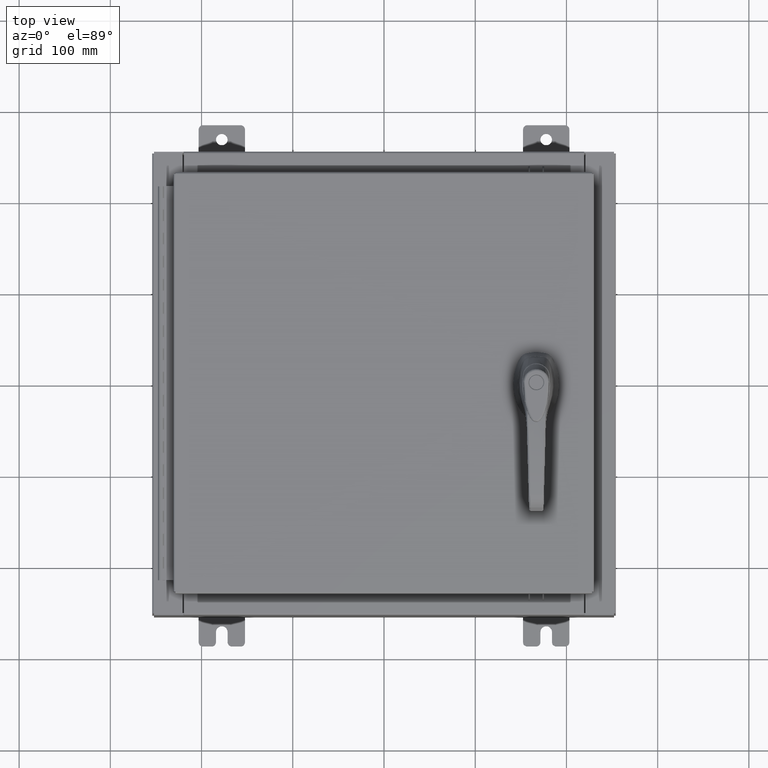
[diagram: clean part render]
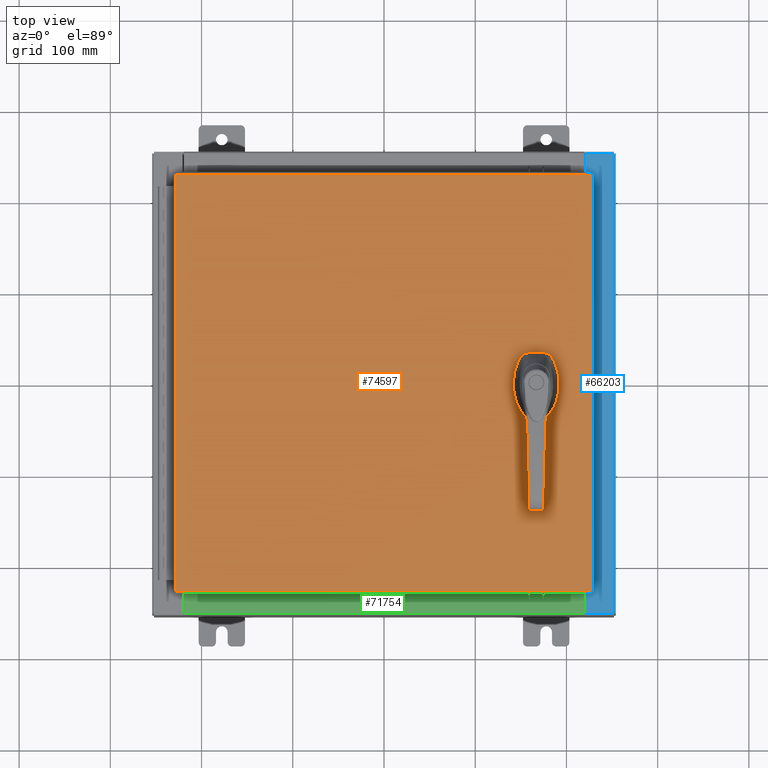
[diagram: same view with three faces highlighted in distinct colors, each labeled with its STEP entity id]
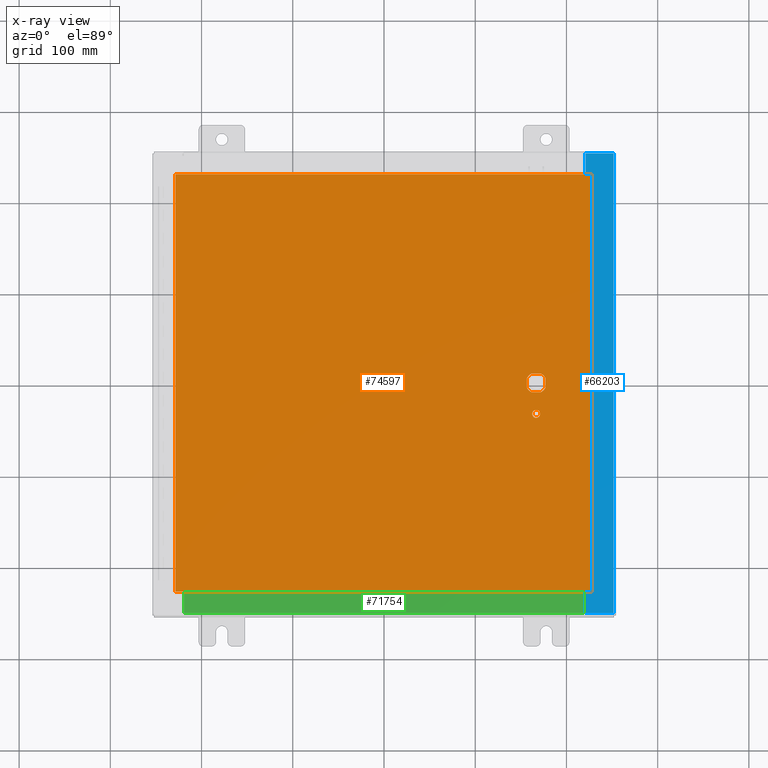
[diagram: x-ray of the same camera — body ghosted, the three highlighted faces saturated]
A machine part, top view with three faces highlighted in distinct colors.
The next image is the same camera in x-ray (body ghosted, the three faces saturated) — at least one of them is partly hidden behind the body in this view.
Their STEP definitions:

[orange] entity #74597 — the highlighted planar face has unit normal (0, 0, -1).
#316 = CARTESIAN_POINT ( 'NONE',  ( 8.990300000000001300, 9.006299999999999500, -2.219626494852214000E-016 ) ) ;
#2680 = DIRECTION ( 'NONE',  ( -0.0000000000000000000, 0.0000000000000000000, 1.000000000000000000 ) ) ;
#4566 = CIRCLE ( 'NONE', #65380, 0.4499999999999156900 ) ;
#5083 = VERTEX_POINT ( 'NONE', #9332 ) ;
#5986 = DIRECTION ( 'NONE',  ( -1.000000000000000000, 0.0000000000000000000, 0.0000000000000000000 ) ) ;
#6340 = EDGE_CURVE ( 'NONE', #22788, #26916, #59470, .T. ) ;
#6543 = CIRCLE ( 'NONE', #82032, 0.4499999999999156900 ) ;
#6753 = VECTOR ( 'NONE', #72059, 39.37007874015748100 ) ;
#7192 = LINE ( 'NONE', #89528, #32267 ) ;
#7480 = EDGE_CURVE ( 'NONE', #26916, #93489, #6543, .T. ) ;
#7741 = CARTESIAN_POINT ( 'NONE',  ( 6.577999999999999400, 0.0000000000000000000, 0.0000000000000000000 ) ) ;
#9332 = CARTESIAN_POINT ( 'NONE',  ( 6.980999999999925300, 0.2002273707563080300, 0.0000000000000000000 ) ) ;
#9451 = VERTEX_POINT ( 'NONE', #42856 ) ;
#10409 = EDGE_CURVE ( 'NONE', #100855, #11882, #76203, .T. ) ;
#10738 = CARTESIAN_POINT ( 'NONE',  ( 6.778227370756309400, 0.4029999999999252000, 0.0000000000000000000 ) ) ;
#11450 = FACE_BOUND ( 'NONE', #90456, .T. ) ;
#11882 = VERTEX_POINT ( 'NONE', #33999 ) ;
#12046 = VECTOR ( 'NONE', #69014, 39.37007874015748100 ) ;
#12727 = CARTESIAN_POINT ( 'NONE',  ( -8.990299999999997700, 9.006299999999999500, -2.048885995248197400E-016 ) ) ;
#13619 = EDGE_CURVE ( 'NONE', #11882, #50546, #7192, .T. ) ;
#13652 = ORIENTED_EDGE ( 'NONE', *, *, #93319, .T. ) ;
#13683 = EDGE_CURVE ( 'NONE', #50546, #9451, #4566, .T. ) ;
#15960 = CARTESIAN_POINT ( 'NONE',  ( 6.749500000000001200, -1.338000000000000100, 0.0000000000000000000 ) ) ;
#16116 = LINE ( 'NONE', #103578, #58344 ) ;
#16138 = CARTESIAN_POINT ( 'NONE',  ( 6.778227370756309400, -0.4029999999999252000, 0.0000000000000000000 ) ) ;
#16246 = DIRECTION ( 'NONE',  ( 1.000000000000000000, 0.0000000000000000000, 0.0000000000000000000 ) ) ;
#16728 = VECTOR ( 'NONE', #89423, 39.37007874015748100 ) ;
#18849 = CARTESIAN_POINT ( 'NONE',  ( 8.990300000000001300, 9.006299999999999500, -2.219626494852214000E-016 ) ) ;
#19392 = LINE ( 'NONE', #47368, #16728 ) ;
#21316 = CIRCLE ( 'NONE', #29931, 0.4499999999999156900 ) ;
#22079 = AXIS2_PLACEMENT_3D ( 'NONE', #45207, #104199, #53672 ) ;
#22788 = VERTEX_POINT ( 'NONE', #10738 ) ;
#23785 = DIRECTION ( 'NONE',  ( 0.0000000000000000000, 0.0000000000000000000, -1.000000000000000000 ) ) ;
#25073 = AXIS2_PLACEMENT_3D ( 'NONE', #43991, #102979, #52441 ) ;
#25768 = CARTESIAN_POINT ( 'NONE',  ( -8.990299999999999500, -9.006299999999999500, -2.219626494852214000E-016 ) ) ;
#26916 = VERTEX_POINT ( 'NONE', #109431 ) ;
#27119 = EDGE_LOOP ( 'NONE', ( #70158, #81866 ) ) ;
#27906 = EDGE_CURVE ( 'NONE', #91453, #79229, #79387, .T. ) ;
#29931 = AXIS2_PLACEMENT_3D ( 'NONE', #39488, #98501, #47965 ) ;
#31212 = FACE_OUTER_BOUND ( 'NONE', #91885, .T. ) ;
#32029 = CARTESIAN_POINT ( 'NONE',  ( 8.990299999999999500, -9.006299999999999500, -7.683322482180740400E-016 ) ) ;
#32267 = VECTOR ( 'NONE', #55941, 39.37007874015748100 ) ;
#32440 = EDGE_CURVE ( 'NONE', #79229, #78548, #106548, .T. ) ;
#32658 = AXIS2_PLACEMENT_3D ( 'NONE', #74267, #23785, #82770 ) ;
#33363 = EDGE_CURVE ( 'NONE', #93489, #100855, #19392, .T. ) ;
#33999 = CARTESIAN_POINT ( 'NONE',  ( 6.377772629243690300, -0.4029999999999252000, 0.0000000000000000000 ) ) ;
#36705 = ORIENTED_EDGE ( 'NONE', *, *, #13619, .F. ) ;
#36761 = ORIENTED_EDGE ( 'NONE', *, *, #32440, .T. ) ;
#37025 = VECTOR ( 'NONE', #5986, 39.37007874015748100 ) ;
#39488 = CARTESIAN_POINT ( 'NONE',  ( 6.577999999999999400, 0.0000000000000000000, 0.0000000000000000000 ) ) ;
#40243 = VERTEX_POINT ( 'NONE', #18849 ) ;
#41945 = DIRECTION ( 'NONE',  ( -0.0000000000000000000, 0.0000000000000000000, 1.000000000000000000 ) ) ;
#42856 = CARTESIAN_POINT ( 'NONE',  ( 6.980999999999926200, -0.2002273707563079800, 0.0000000000000000000 ) ) ;
#43991 = CARTESIAN_POINT ( 'NONE',  ( 6.577999999999999400, -1.338000000000000100, 0.0000000000000000000 ) ) ;
#45207 = CARTESIAN_POINT ( 'NONE',  ( 6.577999999999999400, 0.0000000000000000000, 0.0000000000000000000 ) ) ;
#47368 = CARTESIAN_POINT ( 'NONE',  ( 6.175000000000073500, 0.0000000000000000000, 0.0000000000000000000 ) ) ;
#47695 = ORIENTED_EDGE ( 'NONE', *, *, #92130, .F. ) ;
#47965 = DIRECTION ( 'NONE',  ( 1.000000000000000000, 0.0000000000000000000, 0.0000000000000000000 ) ) ;
#50546 = VERTEX_POINT ( 'NONE', #16138 ) ;
#52441 = DIRECTION ( 'NONE',  ( 1.000000000000000000, 0.0000000000000000000, 0.0000000000000000000 ) ) ;
#53056 = DIRECTION ( 'NONE',  ( 0.0000000000000000000, 1.000000000000000000, 0.0000000000000000000 ) ) ;
#53213 = CARTESIAN_POINT ( 'NONE',  ( 6.577999999999999400, 0.0000000000000000000, 0.0000000000000000000 ) ) ;
#53672 = DIRECTION ( 'NONE',  ( 1.000000000000000000, 0.0000000000000000000, 0.0000000000000000000 ) ) ;
#53682 = FACE_BOUND ( 'NONE', #27119, .T. ) ;
#55941 = DIRECTION ( 'NONE',  ( 1.000000000000000000, 0.0000000000000000000, 0.0000000000000000000 ) ) ;
#57289 = PLANE ( 'NONE',  #32658 ) ;
#58344 = VECTOR ( 'NONE', #53056, 39.37007874015748100 ) ;
#59470 = LINE ( 'NONE', #104643, #37025 ) ;
#59574 = EDGE_CURVE ( 'NONE', #78548, #40243, #16116, .T. ) ;
#59869 = ORIENTED_EDGE ( 'NONE', *, *, #67810, .T. ) ;
#60506 = CARTESIAN_POINT ( 'NONE',  ( -8.990299999999997700, 9.006299999999999500, -2.048885995248197400E-016 ) ) ;
#61673 = DIRECTION ( 'NONE',  ( 1.000000000000000000, 0.0000000000000000000, 0.0000000000000000000 ) ) ;
#64324 = VECTOR ( 'NONE', #84775, 39.37007874015748100 ) ;
#65380 = AXIS2_PLACEMENT_3D ( 'NONE', #53213, #2680, #61673 ) ;
#65769 = CARTESIAN_POINT ( 'NONE',  ( 6.175000000000073500, -0.2002273707563079800, 0.0000000000000000000 ) ) ;
#66759 = DIRECTION ( 'NONE',  ( -0.0000000000000000000, 0.0000000000000000000, 1.000000000000000000 ) ) ;
#66898 = ORIENTED_EDGE ( 'NONE', *, *, #6340, .F. ) ;
#67064 = ORIENTED_EDGE ( 'NONE', *, *, #10409, .F. ) ;
#67810 = EDGE_CURVE ( 'NONE', #5083, #9451, #93861, .T. ) ;
#68261 = EDGE_CURVE ( 'NONE', #81681, #72278, #101918, .T. ) ;
#69014 = DIRECTION ( 'NONE',  ( 0.0000000000000000000, -1.000000000000000000, 0.0000000000000000000 ) ) ;
#69834 = ORIENTED_EDGE ( 'NONE', *, *, #13683, .F. ) ;
#70158 = ORIENTED_EDGE ( 'NONE', *, *, #102044, .F. ) ;
#70623 = AXIS2_PLACEMENT_3D ( 'NONE', #92461, #41945, #100926 ) ;
#70948 = LINE ( 'NONE', #316, #93382 ) ;
#72059 = DIRECTION ( 'NONE',  ( 2.728745808672812900E-015, -1.000000000000000000, 0.0000000000000000000 ) ) ;
#72146 = CARTESIAN_POINT ( 'NONE',  ( 6.175000000000073500, 0.2002273707563079800, 0.0000000000000000000 ) ) ;
#72278 = VERTEX_POINT ( 'NONE', #15960 ) ;
#74267 = CARTESIAN_POINT ( 'NONE',  ( 0.0000000000000000000, 0.0000000000000000000, 0.0000000000000000000 ) ) ;
#74597 = ADVANCED_FACE ( 'NONE', ( #53682, #31212, #11450 ), #57289, .F. ) ;
#76203 = CIRCLE ( 'NONE', #22079, 0.4499999999999156900 ) ;
#78548 = VERTEX_POINT ( 'NONE', #32029 ) ;
#79229 = VERTEX_POINT ( 'NONE', #97955 ) ;
#79263 = CARTESIAN_POINT ( 'NONE',  ( 6.406499999999998500, -1.338000000000000100, 0.0000000000000000000 ) ) ;
#79387 = LINE ( 'NONE', #60506, #12046 ) ;
#80045 = ORIENTED_EDGE ( 'NONE', *, *, #59574, .T. ) ;
#81681 = VERTEX_POINT ( 'NONE', #79263 ) ;
#81866 = ORIENTED_EDGE ( 'NONE', *, *, #68261, .F. ) ;
#82032 = AXIS2_PLACEMENT_3D ( 'NONE', #7741, #66759, #16246 ) ;
#82770 = DIRECTION ( 'NONE',  ( -1.000000000000000000, 0.0000000000000000000, -0.0000000000000000000 ) ) ;
#84760 = DIRECTION ( 'NONE',  ( -1.000000000000000000, -0.0000000000000000000, -0.0000000000000000000 ) ) ;
#84775 = DIRECTION ( 'NONE',  ( 1.000000000000000000, -0.0000000000000000000, -0.0000000000000000000 ) ) ;
#89048 = CARTESIAN_POINT ( 'NONE',  ( 6.980999999999925300, 1.904937449034470600E-014, 0.0000000000000000000 ) ) ;
#89423 = DIRECTION ( 'NONE',  ( 0.0000000000000000000, -1.000000000000000000, 0.0000000000000000000 ) ) ;
#89528 = CARTESIAN_POINT ( 'NONE',  ( 0.0000000000000000000, -0.4029999999999252000, 0.0000000000000000000 ) ) ;
#90456 = EDGE_LOOP ( 'NONE', ( #59869, #69834, #36705, #67064, #93671, #99488, #66898, #47695 ) ) ;
#91453 = VERTEX_POINT ( 'NONE', #12727 ) ;
#91885 = EDGE_LOOP ( 'NONE', ( #36761, #80045, #13652, #92832 ) ) ;
#92130 = EDGE_CURVE ( 'NONE', #5083, #22788, #21316, .T. ) ;
#92461 = CARTESIAN_POINT ( 'NONE',  ( 6.577999999999999400, -1.338000000000000100, 0.0000000000000000000 ) ) ;
#92577 = CIRCLE ( 'NONE', #70623, 0.1715000000000011500 ) ;
#92832 = ORIENTED_EDGE ( 'NONE', *, *, #27906, .T. ) ;
#93319 = EDGE_CURVE ( 'NONE', #40243, #91453, #70948, .T. ) ;
#93382 = VECTOR ( 'NONE', #84760, 39.37007874015748100 ) ;
#93489 = VERTEX_POINT ( 'NONE', #72146 ) ;
#93671 = ORIENTED_EDGE ( 'NONE', *, *, #33363, .F. ) ;
#93861 = LINE ( 'NONE', #89048, #6753 ) ;
#97955 = CARTESIAN_POINT ( 'NONE',  ( -8.990299999999999500, -9.006299999999999500, -2.219626494852214000E-016 ) ) ;
#98501 = DIRECTION ( 'NONE',  ( -0.0000000000000000000, 0.0000000000000000000, 1.000000000000000000 ) ) ;
#99488 = ORIENTED_EDGE ( 'NONE', *, *, #7480, .F. ) ;
#100855 = VERTEX_POINT ( 'NONE', #65769 ) ;
#100926 = DIRECTION ( 'NONE',  ( 1.000000000000000000, 0.0000000000000000000, 0.0000000000000000000 ) ) ;
#101918 = CIRCLE ( 'NONE', #25073, 0.1715000000000011500 ) ;
#102044 = EDGE_CURVE ( 'NONE', #72278, #81681, #92577, .T. ) ;
#102979 = DIRECTION ( 'NONE',  ( -0.0000000000000000000, 0.0000000000000000000, 1.000000000000000000 ) ) ;
#103578 = CARTESIAN_POINT ( 'NONE',  ( 8.990299999999999500, -9.006299999999999500, -7.683322482180740400E-016 ) ) ;
#104199 = DIRECTION ( 'NONE',  ( -0.0000000000000000000, 0.0000000000000000000, 1.000000000000000000 ) ) ;
#104643 = CARTESIAN_POINT ( 'NONE',  ( 0.0000000000000000000, 0.4029999999999252000, 0.0000000000000000000 ) ) ;
#106548 = LINE ( 'NONE', #25768, #64324 ) ;
#109431 = CARTESIAN_POINT ( 'NONE',  ( 6.377772629243690300, 0.4029999999999252000, 0.0000000000000000000 ) ) ;

[blue] entity #66203 — the highlighted planar face has unit normal (-0, 0, -1).
#1435 = VERTEX_POINT ( 'NONE', #86652 ) ;
#1662 = DIRECTION ( 'NONE',  ( -1.000000000000000000, 2.170286390199861100E-014, 0.0000000000000000000 ) ) ;
#6685 = ORIENTED_EDGE ( 'NONE', *, *, #70068, .T. ) ;
#8899 = VECTOR ( 'NONE', #22808, 39.37007874015748100 ) ;
#10131 = CARTESIAN_POINT ( 'NONE',  ( 8.699700000000021300, -8.631100000000005300, 5.925300000000007100 ) ) ;
#10763 = VERTEX_POINT ( 'NONE', #91824 ) ;
#12446 = CARTESIAN_POINT ( 'NONE',  ( 8.750050000000023000, 8.631099999999994700, 5.925300000000007100 ) ) ;
#13071 = CIRCLE ( 'NONE', #51042, 0.01867500000000058700 ) ;
#14286 = CARTESIAN_POINT ( 'NONE',  ( 1.844197746073567000E-015, 9.925299999999964500, 5.925300000000062200 ) ) ;
#17118 = CARTESIAN_POINT ( 'NONE',  ( 8.699700000000019500, 8.631099999999994700, 5.925300000000007100 ) ) ;
#17712 = ORIENTED_EDGE ( 'NONE', *, *, #108023, .T. ) ;
#20242 = VECTOR ( 'NONE', #55110, 39.37007874015748100 ) ;
#21607 = CARTESIAN_POINT ( 'NONE',  ( 8.699700000000019500, 9.925299999999992900, 5.925300000000008000 ) ) ;
#22808 = DIRECTION ( 'NONE',  ( -1.000000000000000000, -3.566381192773189200E-015, 6.241167087353082300E-015 ) ) ;
#24580 = CARTESIAN_POINT ( 'NONE',  ( 8.750050000000023000, -8.631100000000005300, 5.925300000000007100 ) ) ;
#25527 = DIRECTION ( 'NONE',  ( -6.241167087353080700E-015, 5.504816970095137800E-017, -1.000000000000000000 ) ) ;
#25700 = LINE ( 'NONE', #48162, #48118 ) ;
#26292 = ORIENTED_EDGE ( 'NONE', *, *, #89670, .T. ) ;
#26474 = LINE ( 'NONE', #104255, #71345 ) ;
#26983 = ORIENTED_EDGE ( 'NONE', *, *, #65142, .F. ) ;
#27620 = DIRECTION ( 'NONE',  ( 1.100963394019028000E-016, -1.000000000000000000, -5.504816970095207400E-017 ) ) ;
#29500 = LINE ( 'NONE', #81989, #54553 ) ;
#29559 = VERTEX_POINT ( 'NONE', #12446 ) ;
#30799 = VECTOR ( 'NONE', #38018, 39.37007874015748100 ) ;
#31327 = LINE ( 'NONE', #14286, #8899 ) ;
#31406 = DIRECTION ( 'NONE',  ( -1.000000000000000000, 0.0000000000000000000, 0.0000000000000000000 ) ) ;
#31475 = ORIENTED_EDGE ( 'NONE', *, *, #72084, .F. ) ;
#32485 = ORIENTED_EDGE ( 'NONE', *, *, #57934, .F. ) ;
#36294 = CARTESIAN_POINT ( 'NONE',  ( 8.750050000000023000, 8.612424999999992900, 5.925300000000007100 ) ) ;
#36957 = VERTEX_POINT ( 'NONE', #17118 ) ;
#38018 = DIRECTION ( 'NONE',  ( -0.0000000000000000000, -1.000000000000000000, -5.504816970095139000E-017 ) ) ;
#38112 = VECTOR ( 'NONE', #90463, 39.37007874015748100 ) ;
#38551 = LINE ( 'NONE', #88636, #61002 ) ;
#42919 = EDGE_CURVE ( 'NONE', #59002, #65071, #25700, .T. ) ;
#43901 = ORIENTED_EDGE ( 'NONE', *, *, #99656, .F. ) ;
#44233 = CARTESIAN_POINT ( 'NONE',  ( 8.699700000000021300, 6.316282039656843300E-016, 5.925300000000007100 ) ) ;
#44505 = DIRECTION ( 'NONE',  ( 6.241167087353081500E-015, -5.504816970095138400E-017, 1.000000000000000000 ) ) ;
#44818 = DIRECTION ( 'NONE',  ( 1.000000000000000000, 0.0000000000000000000, 0.0000000000000000000 ) ) ;
#45417 = ORIENTED_EDGE ( 'NONE', *, *, #73753, .T. ) ;
#46016 = ORIENTED_EDGE ( 'NONE', *, *, #79958, .F. ) ;
#46642 = CARTESIAN_POINT ( 'NONE',  ( 9.912300000000019700, 9.925299999999998200, 5.925300000000000000 ) ) ;
#46857 = AXIS2_PLACEMENT_3D ( 'NONE', #67919, #25527, #84878 ) ;
#48118 = VECTOR ( 'NONE', #81771, 39.37007874015748100 ) ;
#48162 = CARTESIAN_POINT ( 'NONE',  ( 8.699700000000021300, -8.631100000000005300, 5.925300000000007100 ) ) ;
#48408 = VERTEX_POINT ( 'NONE', #52663 ) ;
#50422 = VERTEX_POINT ( 'NONE', #65173 ) ;
#51042 = AXIS2_PLACEMENT_3D ( 'NONE', #36294, #95342, #44818 ) ;
#52157 = ORIENTED_EDGE ( 'NONE', *, *, #65198, .F. ) ;
#52663 = CARTESIAN_POINT ( 'NONE',  ( 8.750050000000023000, 8.593749999999992900, 5.925300000000007100 ) ) ;
#53059 = CIRCLE ( 'NONE', #68039, 0.01867500000000058700 ) ;
#53721 = DIRECTION ( 'NONE',  ( 1.100963394019028000E-016, -1.000000000000000000, -5.504816970095207400E-017 ) ) ;
#53798 = VECTOR ( 'NONE', #27620, 39.37007874015748100 ) ;
#54553 = VECTOR ( 'NONE', #31406, 39.37007874015748100 ) ;
#55110 = DIRECTION ( 'NONE',  ( 1.000000000000000000, 3.566381192773195500E-015, -6.241167087353082300E-015 ) ) ;
#55507 = VERTEX_POINT ( 'NONE', #21607 ) ;
#57934 = EDGE_CURVE ( 'NONE', #60275, #107411, #95498, .T. ) ;
#59002 = VERTEX_POINT ( 'NONE', #10131 ) ;
#60275 = VERTEX_POINT ( 'NONE', #46642 ) ;
#60547 = LINE ( 'NONE', #65011, #38112 ) ;
#60576 = VECTOR ( 'NONE', #1662, 39.37007874015748100 ) ;
#60652 = CARTESIAN_POINT ( 'NONE',  ( 8.750050000000023000, 8.631099999999994700, 5.925300000000007100 ) ) ;
#61002 = VECTOR ( 'NONE', #79790, 39.37007874015748100 ) ;
#64775 = CARTESIAN_POINT ( 'NONE',  ( 7.263900425133710200E-014, -9.925300000000033800, 5.925300000000060400 ) ) ;
#65011 = CARTESIAN_POINT ( 'NONE',  ( 8.712700000000023000, -8.593750000000005300, 5.925300000000007100 ) ) ;
#65071 = VERTEX_POINT ( 'NONE', #24580 ) ;
#65142 = EDGE_CURVE ( 'NONE', #29559, #36957, #102819, .T. ) ;
#65173 = CARTESIAN_POINT ( 'NONE',  ( 8.712700000000023000, 8.593749999999994700, 5.925300000000007100 ) ) ;
#65198 = EDGE_CURVE ( 'NONE', #48408, #29559, #13071, .T. ) ;
#66203 = ADVANCED_FACE ( 'NONE', ( #77654 ), #76417, .F. ) ;
#67919 = CARTESIAN_POINT ( 'NONE',  ( 3.724160099870517900E-014, -3.261769199290506100E-016, 5.925300000000061300 ) ) ;
#68039 = AXIS2_PLACEMENT_3D ( 'NONE', #95037, #44505, #103489 ) ;
#70068 = EDGE_CURVE ( 'NONE', #59002, #10763, #26474, .T. ) ;
#71345 = VECTOR ( 'NONE', #53721, 39.37007874015748100 ) ;
#72084 = EDGE_CURVE ( 'NONE', #1435, #50422, #60547, .T. ) ;
#73753 = EDGE_CURVE ( 'NONE', #60275, #55507, #31327, .T. ) ;
#74637 = ORIENTED_EDGE ( 'NONE', *, *, #42919, .F. ) ;
#76417 = PLANE ( 'NONE',  #46857 ) ;
#77066 = VERTEX_POINT ( 'NONE', #79093 ) ;
#77654 = FACE_OUTER_BOUND ( 'NONE', #87046, .T. ) ;
#78894 = LINE ( 'NONE', #44233, #53798 ) ;
#79093 = CARTESIAN_POINT ( 'NONE',  ( 8.750050000000023000, -8.593750000000005300, 5.925300000000007100 ) ) ;
#79790 = DIRECTION ( 'NONE',  ( 1.000000000000000000, 0.0000000000000000000, 0.0000000000000000000 ) ) ;
#79958 = EDGE_CURVE ( 'NONE', #50422, #48408, #38551, .T. ) ;
#80477 = CARTESIAN_POINT ( 'NONE',  ( 9.912300000000019700, -9.925300000000000000, 5.925299999999999100 ) ) ;
#81771 = DIRECTION ( 'NONE',  ( 1.000000000000000000, 2.170286390199955400E-014, 0.0000000000000000000 ) ) ;
#81989 = CARTESIAN_POINT ( 'NONE',  ( 8.750050000000023000, -8.593750000000005300, 5.925300000000007100 ) ) ;
#84878 = DIRECTION ( 'NONE',  ( -1.000000000000000000, 0.0000000000000000000, 6.241167087353080700E-015 ) ) ;
#84879 = LINE ( 'NONE', #64775, #20242 ) ;
#86652 = CARTESIAN_POINT ( 'NONE',  ( 8.712700000000023000, -8.593750000000005300, 5.925300000000007100 ) ) ;
#87046 = EDGE_LOOP ( 'NONE', ( #74637, #6685, #26292, #32485, #45417, #17712, #26983, #52157, #46016, #31475, #43901, #89032 ) ) ;
#88636 = CARTESIAN_POINT ( 'NONE',  ( 8.712700000000023000, 8.593749999999994700, 5.925300000000007100 ) ) ;
#89032 = ORIENTED_EDGE ( 'NONE', *, *, #91253, .F. ) ;
#89670 = EDGE_CURVE ( 'NONE', #10763, #107411, #84879, .T. ) ;
#90463 = DIRECTION ( 'NONE',  ( -0.0000000000000000000, 1.000000000000000000, -0.0000000000000000000 ) ) ;
#91253 = EDGE_CURVE ( 'NONE', #65071, #77066, #53059, .T. ) ;
#91824 = CARTESIAN_POINT ( 'NONE',  ( 8.699700000000021300, -9.925300000000001800, 5.925300000000005300 ) ) ;
#95037 = CARTESIAN_POINT ( 'NONE',  ( 8.750050000000023000, -8.612425000000005300, 5.925300000000007100 ) ) ;
#95342 = DIRECTION ( 'NONE',  ( 6.241167087353081500E-015, -5.504816970095138400E-017, 1.000000000000000000 ) ) ;
#95498 = LINE ( 'NONE', #80477, #30799 ) ;
#99656 = EDGE_CURVE ( 'NONE', #77066, #1435, #29500, .T. ) ;
#101155 = CARTESIAN_POINT ( 'NONE',  ( 9.912300000000019700, -9.925299999999998200, 5.925299999999999100 ) ) ;
#102819 = LINE ( 'NONE', #60652, #60576 ) ;
#103489 = DIRECTION ( 'NONE',  ( 1.000000000000000000, 0.0000000000000000000, 0.0000000000000000000 ) ) ;
#104255 = CARTESIAN_POINT ( 'NONE',  ( 8.699700000000021300, 6.316282039656843300E-016, 5.925300000000007100 ) ) ;
#107411 = VERTEX_POINT ( 'NONE', #101155 ) ;
#108023 = EDGE_CURVE ( 'NONE', #55507, #36957, #78894, .T. ) ;

[green] entity #71754 — the highlighted planar face has unit normal (-0, -0, 1).
#6356 = VECTOR ( 'NONE', #14537, 39.37007874015748100 ) ;
#10065 = ORIENTED_EDGE ( 'NONE', *, *, #108856, .F. ) ;
#11457 = VECTOR ( 'NONE', #67944, 39.37007874015748100 ) ;
#14537 = DIRECTION ( 'NONE',  ( -0.0000000000000000000, 1.000000000000000000, -3.566381192773190000E-015 ) ) ;
#21324 = LINE ( 'NONE', #48080, #108396 ) ;
#21967 = ORIENTED_EDGE ( 'NONE', *, *, #72823, .F. ) ;
#22236 = VERTEX_POINT ( 'NONE', #54311 ) ;
#27522 = EDGE_CURVE ( 'NONE', #45749, #58768, #100526, .T. ) ;
#28829 = LINE ( 'NONE', #48104, #6356 ) ;
#32682 = PLANE ( 'NONE',  #98250 ) ;
#33245 = CARTESIAN_POINT ( 'NONE',  ( 8.637200000000000000, -0.08769999999999965300, 3.000000000000000900 ) ) ;
#34178 = FACE_OUTER_BOUND ( 'NONE', #109140, .T. ) ;
#35167 = VERTEX_POINT ( 'NONE', #36629 ) ;
#36629 = CARTESIAN_POINT ( 'NONE',  ( 8.637200000000000000, -1.287299999999999900, 3.000000000000005300 ) ) ;
#41188 = DIRECTION ( 'NONE',  ( 0.0000000000000000000, 3.566381192773190000E-015, 1.000000000000000000 ) ) ;
#45749 = VERTEX_POINT ( 'NONE', #33245 ) ;
#48080 = CARTESIAN_POINT ( 'NONE',  ( 8.637200000000000000, -1.300299999999999800, 3.000000000000005300 ) ) ;
#48104 = CARTESIAN_POINT ( 'NONE',  ( -8.637200000000000000, -0.07469999999999973900, 3.000000000000000900 ) ) ;
#51079 = ORIENTED_EDGE ( 'NONE', *, *, #60397, .F. ) ;
#54311 = CARTESIAN_POINT ( 'NONE',  ( -8.637200000000000000, -1.287299999999999200, 3.000000000000005300 ) ) ;
#58768 = VERTEX_POINT ( 'NONE', #100179 ) ;
#59462 = CARTESIAN_POINT ( 'NONE',  ( 8.637200000000000000, -1.287299999999999900, 3.000000000000005300 ) ) ;
#60397 = EDGE_CURVE ( 'NONE', #45749, #35167, #21324, .T. ) ;
#66261 = CARTESIAN_POINT ( 'NONE',  ( 0.0000000000000000000, 1.069354855923099900E-014, 3.000000000000000900 ) ) ;
#67944 = DIRECTION ( 'NONE',  ( -1.000000000000000000, 0.0000000000000000000, 0.0000000000000000000 ) ) ;
#71754 = ADVANCED_FACE ( 'NONE', ( #34178 ), #32682, .T. ) ;
#72823 = EDGE_CURVE ( 'NONE', #22236, #58768, #28829, .T. ) ;
#77567 = ORIENTED_EDGE ( 'NONE', *, *, #27522, .T. ) ;
#78782 = LINE ( 'NONE', #59462, #11457 ) ;
#82004 = DIRECTION ( 'NONE',  ( -1.000000000000000000, 3.162886113166609200E-017, -1.128005754888089100E-031 ) ) ;
#98250 = AXIS2_PLACEMENT_3D ( 'NONE', #66261, #41188, #100185 ) ;
#100179 = CARTESIAN_POINT ( 'NONE',  ( -8.637200000000000000, -0.08770000000000000000, 3.000000000000000900 ) ) ;
#100185 = DIRECTION ( 'NONE',  ( 0.0000000000000000000, -1.000000000000000000, 3.566381192773190000E-015 ) ) ;
#100526 = LINE ( 'NONE', #107028, #103184 ) ;
#103184 = VECTOR ( 'NONE', #82004, 39.37007874015748100 ) ;
#107028 = CARTESIAN_POINT ( 'NONE',  ( -2.773851121247453900E-018, -0.08770000000000000000, 3.000000000000001300 ) ) ;
#107084 = DIRECTION ( 'NONE',  ( -0.0000000000000000000, -1.000000000000000000, 3.566381192773190000E-015 ) ) ;
#108396 = VECTOR ( 'NONE', #107084, 39.37007874015748100 ) ;
#108856 = EDGE_CURVE ( 'NONE', #35167, #22236, #78782, .T. ) ;
#109140 = EDGE_LOOP ( 'NONE', ( #21967, #10065, #51079, #77567 ) ) ;